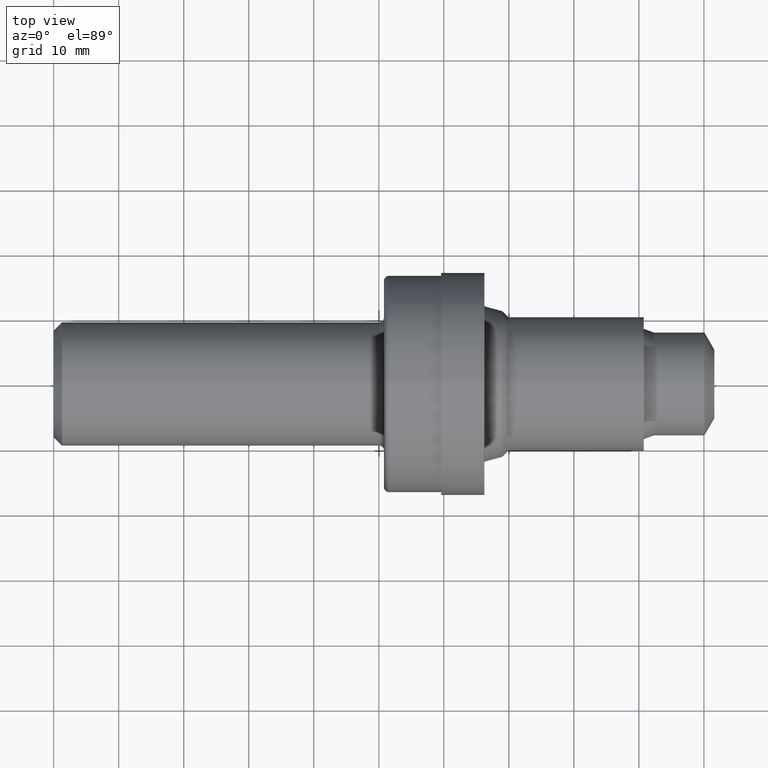
[diagram: clean part render]
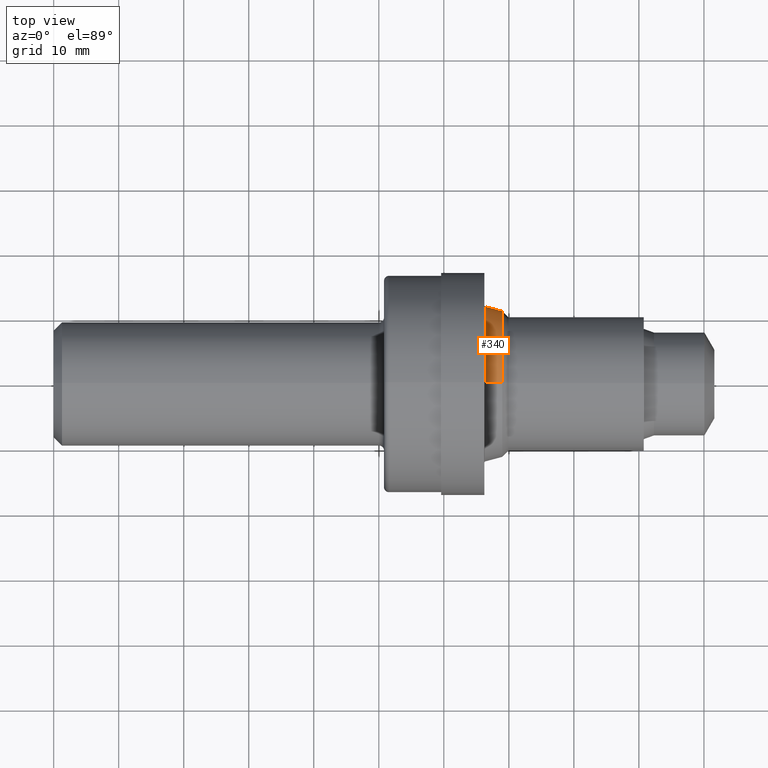
[diagram: same view with one face highlighted and labeled with its STEP entity id]
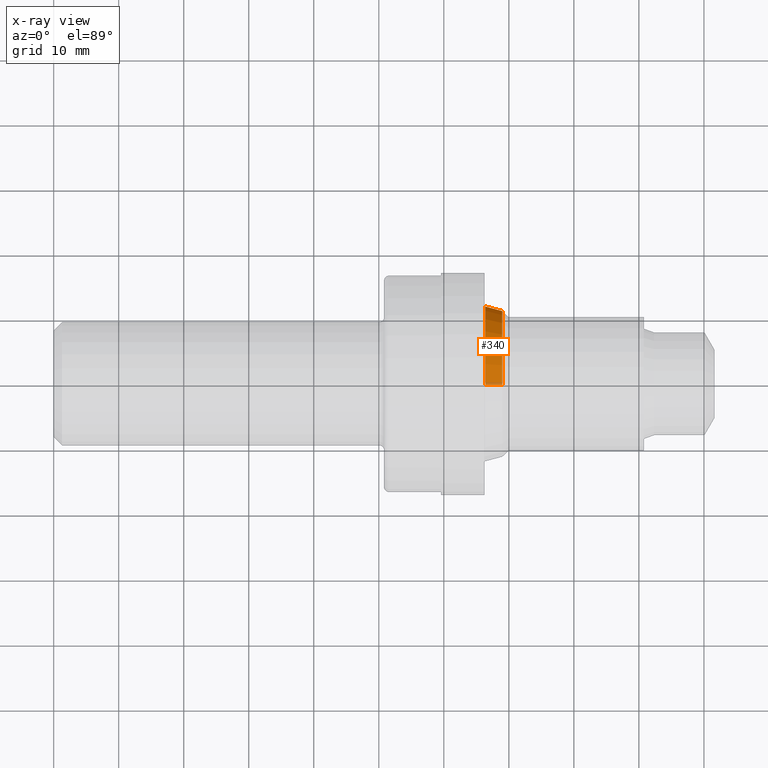
[diagram: x-ray of the same camera — body ghosted, the highlighted face saturated]
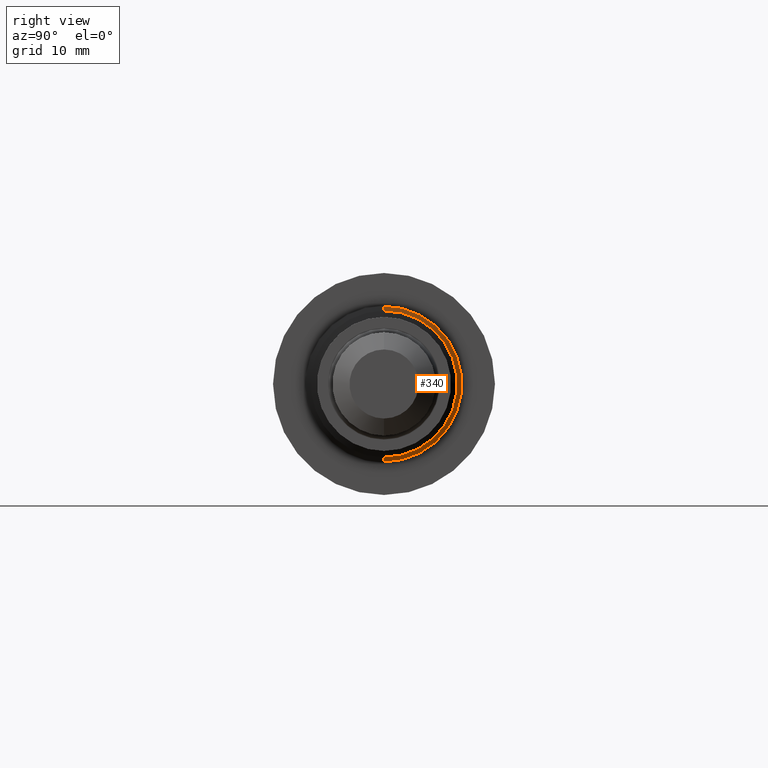
[diagram: same view with one face highlighted and labeled with its STEP entity id]
A machine part, top view. The second image highlights one B-rep face of the part: STEP entity #340.
The next image is the same camera in x-ray: the body ghosted, the highlighted face saturated — about 3% of this face is hidden behind the body in this view.
A second angle (right view) of the same face is appended — the face is thin or edge-on in the first view.
In plain terms, the highlighted conical surface has half-angle 15 deg.
Its self-contained STEP definition (entity closure, byte-faithful):
#11 = LINE ( 'NONE', #695, #697 ) ;
#42 = EDGE_LOOP ( 'NONE', ( #322, #155, #395, #256 ) ) ;
#69 = EDGE_CURVE ( 'NONE', #77, #194, #867, .T. ) ;
#77 = VERTEX_POINT ( 'NONE', #738 ) ;
#106 = AXIS2_PLACEMENT_3D ( 'NONE', #614, #119, #526 ) ;
#111 = EDGE_CURVE ( 'NONE', #77, #549, #336, .T. ) ;
#117 = CARTESIAN_POINT ( 'NONE',  ( 2.715999999999999748, 0.0000000000000000000, 0.0000000000000000000 ) ) ;
#119 = DIRECTION ( 'NONE',  ( -1.000000000000000000, -0.0000000000000000000, -0.0000000000000000000 ) ) ;
#144 = CARTESIAN_POINT ( 'NONE',  ( 2.715999999999999748, 0.0000000000000000000, 0.4435614872174389878 ) ) ;
#155 = ORIENTED_EDGE ( 'NONE', *, *, #849, .T. ) ;
#194 = VERTEX_POINT ( 'NONE', #774 ) ;
#207 = DIRECTION ( 'NONE',  ( -0.9659258262890689783, 0.0000000000000000000, 0.2588190451025185745 ) ) ;
#256 = ORIENTED_EDGE ( 'NONE', *, *, #69, .F. ) ;
#294 = CIRCLE ( 'NONE', #106, 0.4710105087126742474 ) ;
#299 = CONICAL_SURFACE ( 'NONE', #746, 0.4435614872174389878, 0.2617993877991471874 ) ;
#322 = ORIENTED_EDGE ( 'NONE', *, *, #111, .T. ) ;
#336 = CIRCLE ( 'NONE', #626, 0.4435614872174389878 ) ;
#340 = ADVANCED_FACE ( 'NONE', ( #679 ), #299, .T. ) ;
#360 = VECTOR ( 'NONE', #207, 39.37007874015748143 ) ;
#371 = DIRECTION ( 'NONE',  ( -1.000000000000000000, -0.0000000000000000000, -0.0000000000000000000 ) ) ;
#395 = ORIENTED_EDGE ( 'NONE', *, *, #744, .F. ) ;
#526 = DIRECTION ( 'NONE',  ( 0.0000000000000000000, 0.0000000000000000000, 1.000000000000000000 ) ) ;
#549 = VERTEX_POINT ( 'NONE', #733 ) ;
#608 = CARTESIAN_POINT ( 'NONE',  ( 2.613558857161730753, 5.768215118597430083E-17, -0.4710105087126742474 ) ) ;
#614 = CARTESIAN_POINT ( 'NONE',  ( 2.613558857161730753, 0.0000000000000000000, 0.0000000000000000000 ) ) ;
#626 = AXIS2_PLACEMENT_3D ( 'NONE', #830, #371, #762 ) ;
#630 = DIRECTION ( 'NONE',  ( -0.9659258262890689783, 3.169619151431738440E-17, -0.2588190451025185745 ) ) ;
#659 = DIRECTION ( 'NONE',  ( -1.000000000000000000, -0.0000000000000000000, -0.0000000000000000000 ) ) ;
#676 = VERTEX_POINT ( 'NONE', #608 ) ;
#679 = FACE_OUTER_BOUND ( 'NONE', #42, .T. ) ;
#695 = CARTESIAN_POINT ( 'NONE',  ( 2.715999999999999748, 5.432061555458762601E-17, -0.4435614872174389878 ) ) ;
#697 = VECTOR ( 'NONE', #630, 39.37007874015748143 ) ;
#733 = CARTESIAN_POINT ( 'NONE',  ( 2.715999999999999748, 5.432061555458762601E-17, -0.4435614872174389878 ) ) ;
#738 = CARTESIAN_POINT ( 'NONE',  ( 2.715999999999999748, 0.0000000000000000000, 0.4435614872174389878 ) ) ;
#744 = EDGE_CURVE ( 'NONE', #194, #676, #294, .T. ) ;
#746 = AXIS2_PLACEMENT_3D ( 'NONE', #117, #659, #793 ) ;
#762 = DIRECTION ( 'NONE',  ( 0.0000000000000000000, 0.0000000000000000000, 1.000000000000000000 ) ) ;
#774 = CARTESIAN_POINT ( 'NONE',  ( 2.613558857161730753, 0.0000000000000000000, 0.4710105087126742474 ) ) ;
#793 = DIRECTION ( 'NONE',  ( 0.0000000000000000000, 0.0000000000000000000, 1.000000000000000000 ) ) ;
#830 = CARTESIAN_POINT ( 'NONE',  ( 2.715999999999999748, 0.0000000000000000000, 0.0000000000000000000 ) ) ;
#849 = EDGE_CURVE ( 'NONE', #549, #676, #11, .T. ) ;
#867 = LINE ( 'NONE', #144, #360 ) ;